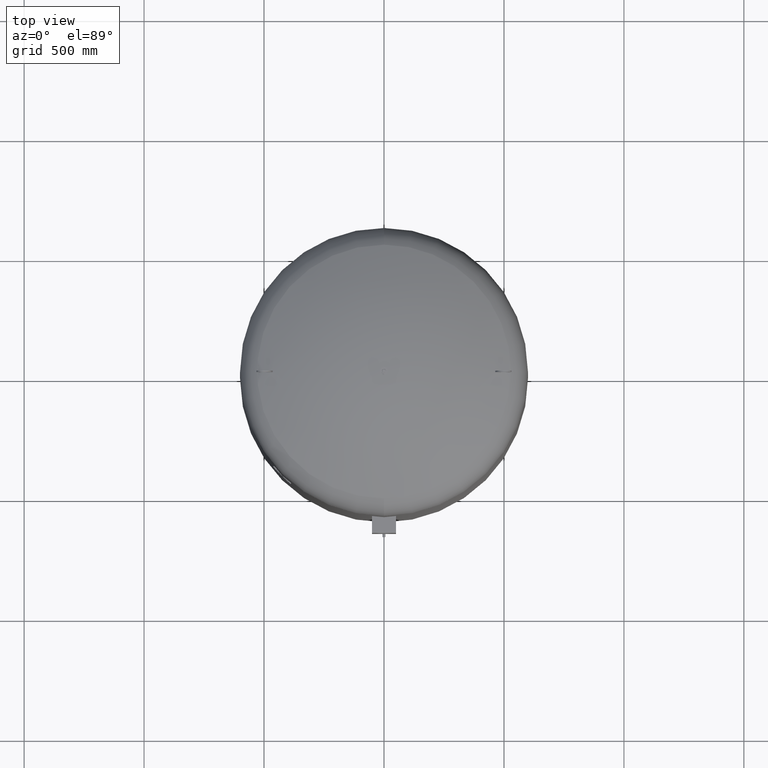
[diagram: clean part render]
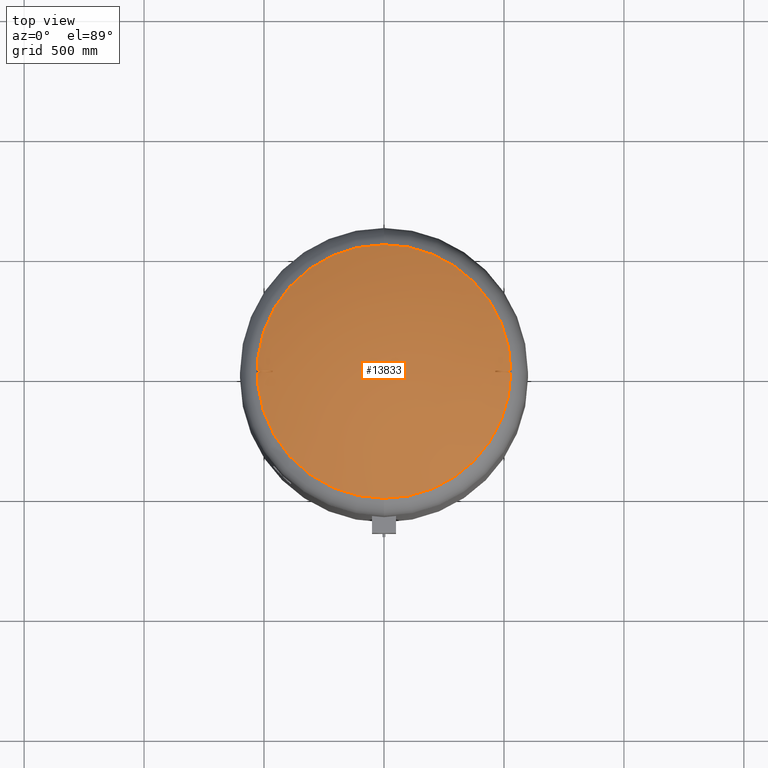
[diagram: same view with one face highlighted and labeled with its STEP entity id]
A machine part, top view. The second image highlights one B-rep face of the part: STEP entity #13833.
In plain terms, the highlighted spherical surface has radius 1207 mm.
Its self-contained STEP definition (entity closure, byte-faithful):
#13265=CARTESIAN_POINT('',(3.894773E-014,-528.621296296296240,2347.084570483804800));
#13266=VERTEX_POINT('',#13265);
#13282=CARTESIAN_POINT('',(1.036830E-013,528.621296296296240,2347.084570483804800));
#13283=VERTEX_POINT('',#13282);
#13291=CARTESIAN_POINT('',(528.621296296296240,-2.239550E-014,2347.084570483804800));
#13292=VERTEX_POINT('',#13291);
#13293=CARTESIAN_POINT('',(3.410787E-015,-2.239550E-014,2347.084570483804800));
#13294=DIRECTION('',(0.0,0.0,-1.0));
#13295=DIRECTION('',(1.0,0.0,0.0));
#13296=AXIS2_PLACEMENT_3D('',#13293,#13294,#13295);
#13297=CIRCLE('',#13296,528.621296296296240);
#13298=EDGE_CURVE('',#13283,#13292,#13297,.T.);
#13300=CARTESIAN_POINT('',(3.410787E-015,-2.239550E-014,2347.084570483804800));
#13301=DIRECTION('',(0.0,0.0,-1.0));
#13302=DIRECTION('',(1.0,0.0,0.0));
#13303=AXIS2_PLACEMENT_3D('',#13300,#13301,#13302);
#13304=CIRCLE('',#13303,528.621296296296240);
#13305=EDGE_CURVE('',#13292,#13266,#13304,.T.);
#13420=CARTESIAN_POINT('',(-463.451600218966230,-3.000000000000292,2376.474142479079100));
#13421=VERTEX_POINT('',#13420);
#13422=CARTESIAN_POINT('',(-521.618748390259610,-2.999999999999862,2350.464000933324300));
#13423=VERTEX_POINT('',#13422);
#13424=CARTESIAN_POINT('',(1.015543E-013,-3.000000000004973,1262.0));
#13425=DIRECTION('',(0.0,-1.0,0.0));
#13426=DIRECTION('',(0.0,0.0,1.0));
#13427=AXIS2_PLACEMENT_3D('',#13424,#13425,#13426);
#13428=CIRCLE('',#13427,1206.996271742378000);
#13429=EDGE_CURVE('',#13421,#13423,#13428,.T.);
#13472=CARTESIAN_POINT('',(-463.451600218966290,2.999999999999727,2376.474142479079500));
#13473=VERTEX_POINT('',#13472);
#13474=CARTESIAN_POINT('',(-143.673995061822890,7.801844E-013,1222.196972395376000));
#13475=DIRECTION('',(0.963701753162816,-6.720348E-015,0.266981143436978));
#13476=DIRECTION('',(-0.266981143436977,0.0,0.963701753162815));
#13477=AXIS2_PLACEMENT_3D('',#13474,#13475,#13476);
#13478=CIRCLE('',#13477,1197.757280143385700);
#13479=EDGE_CURVE('',#13473,#13421,#13478,.T.);
#13522=CARTESIAN_POINT('',(-521.618748390259730,3.000000000000095,2350.464000933324300));
#13523=VERTEX_POINT('',#13522);
#13524=CARTESIAN_POINT('',(-204.387205511080400,1.203566E-012,1205.377160358846400));
#13525=DIRECTION('',(-0.963701753162815,6.720348E-015,-0.266981143436977));
#13526=DIRECTION('',(0.266981143436977,0.0,-0.963701753162815));
#13527=AXIS2_PLACEMENT_3D('',#13524,#13525,#13526);
#13528=CIRCLE('',#13527,1188.220823018324600);
#13529=EDGE_CURVE('',#13423,#13523,#13528,.T.);
#13554=CARTESIAN_POINT('',(1.458865E-013,2.999999999995042,1262.0));
#13555=DIRECTION('',(0.0,1.0,0.0));
#13556=DIRECTION('',(0.0,0.0,-1.0));
#13557=AXIS2_PLACEMENT_3D('',#13554,#13555,#13556);
#13558=CIRCLE('',#13557,1206.996271742378000);
#13559=EDGE_CURVE('',#13523,#13473,#13558,.T.);
#13594=CARTESIAN_POINT('',(463.451600218966350,2.999999999999727,2376.474142479080000));
#13595=VERTEX_POINT('',#13594);
#13596=CARTESIAN_POINT('',(521.618748390259730,3.000000000000095,2350.464000933324300));
#13597=VERTEX_POINT('',#13596);
#13598=CARTESIAN_POINT('',(1.015543E-013,2.999999999995042,1262.0));
#13599=DIRECTION('',(0.0,1.0,0.0));
#13600=DIRECTION('',(0.0,0.0,-1.0));
#13601=AXIS2_PLACEMENT_3D('',#13598,#13599,#13600);
#13602=CIRCLE('',#13601,1206.996271742378000);
#13603=EDGE_CURVE('',#13595,#13597,#13602,.T.);
#13646=CARTESIAN_POINT('',(463.451600218966230,-3.000000000000292,2376.474142479079100));
#13647=VERTEX_POINT('',#13646);
#13648=CARTESIAN_POINT('',(143.673995061822890,7.801844E-013,1222.196972395376000));
#13649=DIRECTION('',(-0.963701753162816,-6.720348E-015,0.266981143436978));
#13650=DIRECTION('',(-0.266981143436977,0.0,-0.963701753162815));
#13651=AXIS2_PLACEMENT_3D('',#13648,#13649,#13650);
#13652=CIRCLE('',#13651,1197.757280143385700);
#13653=EDGE_CURVE('',#13647,#13595,#13652,.T.);
#13717=CARTESIAN_POINT('',(521.618748390259610,-2.999999999999862,2350.464000933324300));
#13718=VERTEX_POINT('',#13717);
#13719=CARTESIAN_POINT('',(204.387205511080450,1.203566E-012,1205.377160358846400));
#13720=DIRECTION('',(0.963701753162815,6.720348E-015,-0.266981143436977));
#13721=DIRECTION('',(0.266981143436977,0.0,0.963701753162815));
#13722=AXIS2_PLACEMENT_3D('',#13719,#13720,#13721);
#13723=CIRCLE('',#13722,1188.220823018324600);
#13724=EDGE_CURVE('',#13597,#13718,#13723,.T.);
#13788=CARTESIAN_POINT('',(1.458865E-013,-3.000000000004973,1262.0));
#13789=DIRECTION('',(0.0,-1.0,0.0));
#13790=DIRECTION('',(0.0,0.0,1.0));
#13791=AXIS2_PLACEMENT_3D('',#13788,#13789,#13790);
#13792=CIRCLE('',#13791,1206.996271742378000);
#13793=EDGE_CURVE('',#13718,#13647,#13792,.T.);
#13805=CARTESIAN_POINT('',(1.237204E-013,-2.217223E-013,1262.0));
#13806=DIRECTION('',(0.0,-1.0,0.0));
#13807=DIRECTION('',(-1.0,0.0,0.0));
#13808=AXIS2_PLACEMENT_3D('',#13805,#13806,#13807);
#13809=SPHERICAL_SURFACE('',#13808,1207.000000000000200);
#13810=ORIENTED_EDGE('',*,*,#13479,.T.);
#13811=ORIENTED_EDGE('',*,*,#13429,.T.);
#13812=ORIENTED_EDGE('',*,*,#13529,.T.);
#13813=ORIENTED_EDGE('',*,*,#13559,.T.);
#13814=EDGE_LOOP('',(#13810,#13811,#13812,#13813));
#13815=FACE_OUTER_BOUND('',#13814,.T.);
#13816=ORIENTED_EDGE('',*,*,#13653,.T.);
#13817=ORIENTED_EDGE('',*,*,#13603,.T.);
#13818=ORIENTED_EDGE('',*,*,#13724,.T.);
#13819=ORIENTED_EDGE('',*,*,#13793,.T.);
#13820=EDGE_LOOP('',(#13816,#13817,#13818,#13819));
#13821=FACE_BOUND('',#13820,.T.);
#13822=ORIENTED_EDGE('',*,*,#13305,.F.);
#13823=ORIENTED_EDGE('',*,*,#13298,.F.);
#13824=CARTESIAN_POINT('',(3.410787E-015,-2.239550E-014,2347.084570483804800));
#13825=DIRECTION('',(0.0,0.0,-1.0));
#13826=DIRECTION('',(1.0,0.0,0.0));
#13827=AXIS2_PLACEMENT_3D('',#13824,#13825,#13826);
#13828=CIRCLE('',#13827,528.621296296296240);
#13829=EDGE_CURVE('',#13266,#13283,#13828,.T.);
#13830=ORIENTED_EDGE('',*,*,#13829,.F.);
#13831=EDGE_LOOP('',(#13822,#13823,#13830));
#13832=FACE_BOUND('',#13831,.T.);
#13833=ADVANCED_FACE('',(#13815,#13821,#13832),#13809,.T.);